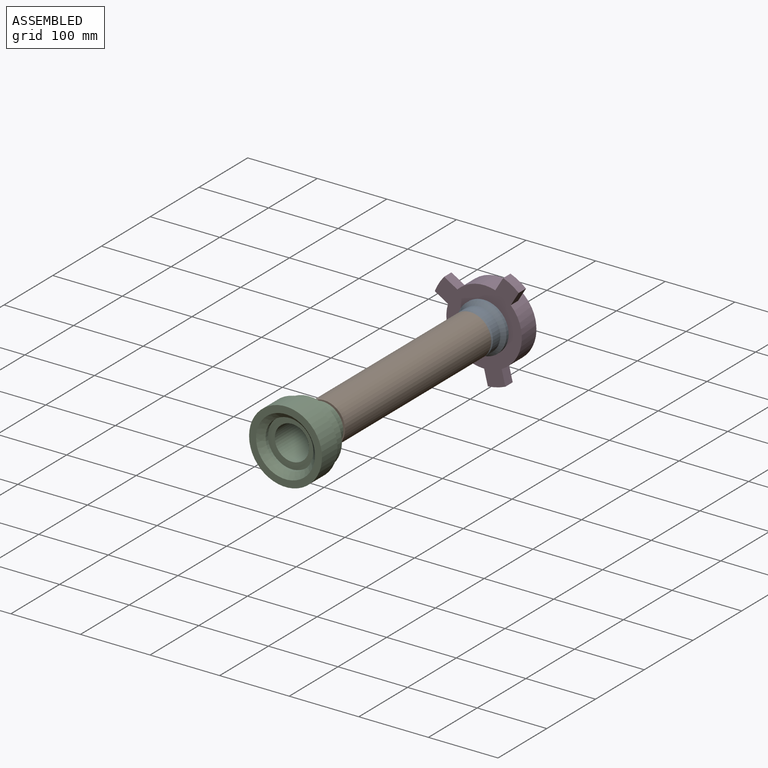
[diagram: assembled view]
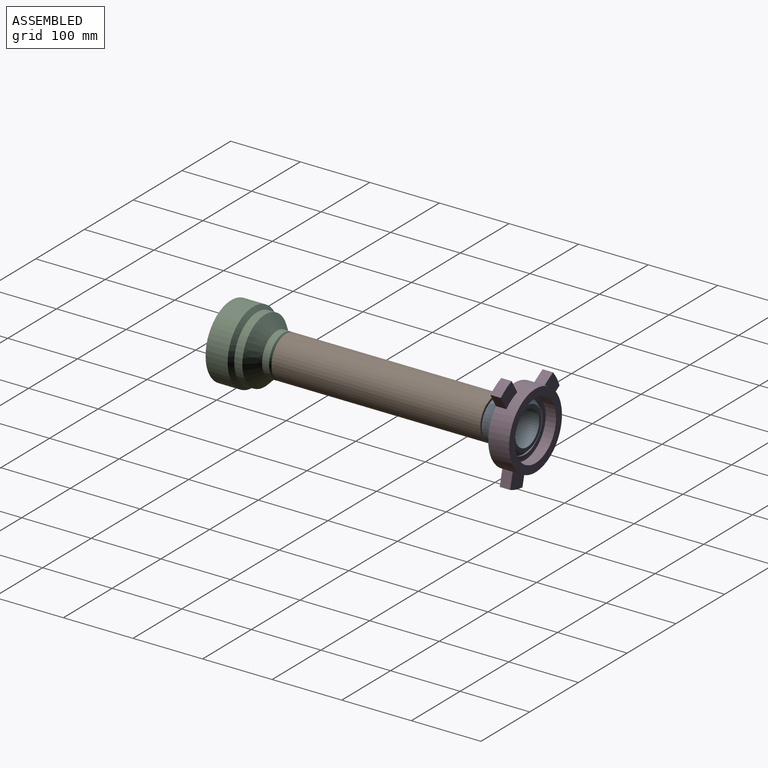
[diagram: assembled view, second angle]
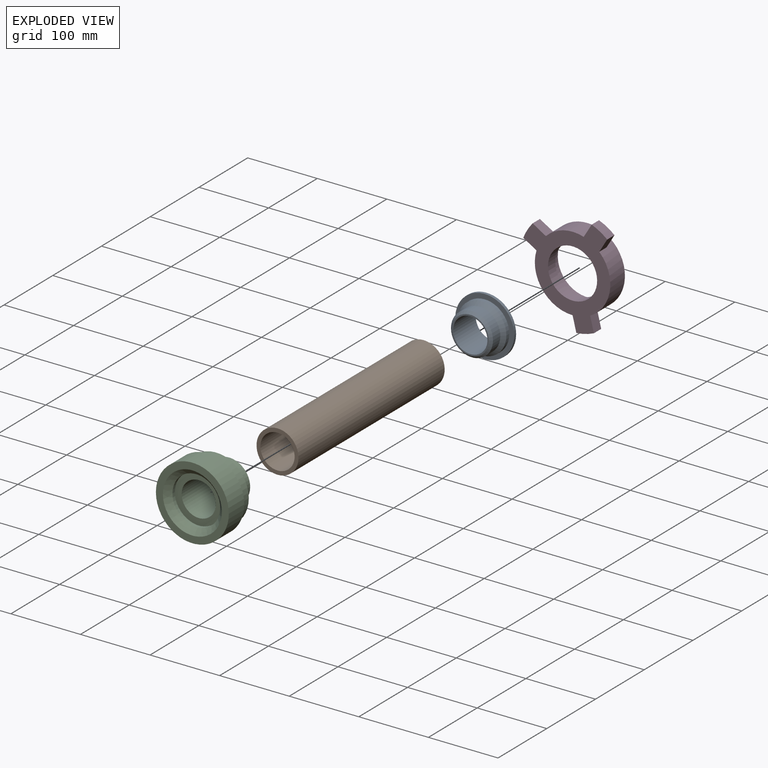
[diagram: exploded view]
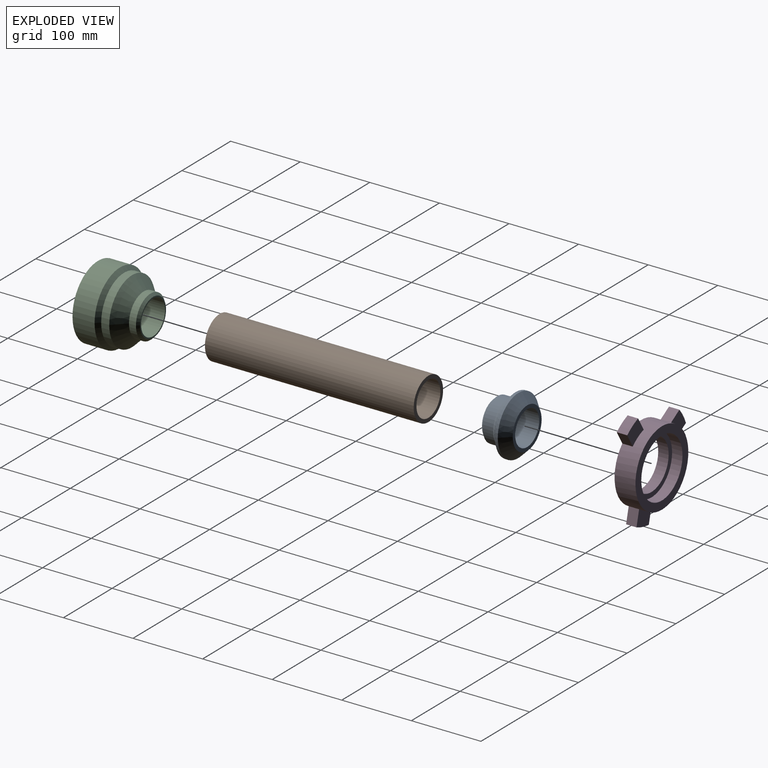
[diagram: exploded view, second angle]
ASSEMBLY  parts=4 mates=3
PART A: 10 faces, bbox 84.6x84.6x46.4 mm
  f0: cylinder r=24.61mm len=49.22mm, axis (0,0,1), area 7167.8mm2, adj f1,f9
  f1: plane 53.22x53.22mm, normal (0,0,1), area 321.8mm2, adj f0,f2
  f2: cone r=26.61mm half-angle=45deg, axis (0,0,-1), area 892.7mm2, adj f1,f3
  f3: cylinder r=30.15mm len=60.3mm, axis (0,0,1), area 2841.6mm2, adj f2,f4
  f4: cone r=30.15mm half-angle=45deg, axis (0,0,-1), area 1497.6mm2, adj f3,f5
  f5: cylinder r=35.3mm len=70.6mm, axis (0,0,1), area 1315.6mm2, adj f4,f6
  f6: plane 84.61x84.61mm, normal (0,0,1), area 1708.1mm2, adj f5,f7
  f7: cylinder r=42.31mm len=84.61mm, axis (0,0,1), area 1073.2mm2, adj f6,f8
  f8: cone r=42.31mm half-angle=45deg, axis (0,0,1), area 4056.6mm2, adj f7,f9
  f9: plane 59.22x59.22mm, normal (0,0,-1), area 851.7mm2, adj f0,f8
PART B: 4 faces, bbox 60.3x300x60.3 mm
  f0: cylinder r=24.61mm len=300mm, axis (0,-1,0), area 46388.8mm2, adj f2,f3
  f1: cylinder r=30.15mm len=300mm, axis (0,-1,0), area 56831.4mm2, adj f2,f3
  f2: plane 60.3x60.3mm, normal (0,1,0), area 953.1mm2, adj f0,f1
  f3: plane 60.3x60.3mm, normal (0,-1,0), area 953.1mm2, adj f0,f1
PART C: 12 faces, bbox 104.8x104.8x79.1 mm
  f0: cylinder r=24.61mm len=66.04mm, axis (0,0,1), area 10211.3mm2, adj f1,f11
  f1: plane 53.22x53.22mm, normal (0,0,1), area 321.8mm2, adj f0,f2
  f2: cone r=26.61mm half-angle=45deg, axis (0,0,-1), area 892.7mm2, adj f1,f3
  f3: cylinder r=30.15mm len=60.3mm, axis (0,0,1), area 1894.4mm2, adj f2,f4
  f4: cone r=30.15mm half-angle=45deg, axis (0,0,-1), area 5705.2mm2, adj f3,f5
  f5: cylinder r=46.83mm len=93.66mm, axis (0,0,1), area 3410.6mm2, adj f4,f6
  f6: cone r=46.83mm half-angle=45deg, axis (0,0,-1), area 2450.6mm2, adj f5,f7
  f7: cylinder r=52.39mm len=104.78mm, axis (0,0,1), area 10451.3mm2, adj f6,f8
  f8: plane 104.78x104.78mm, normal (0,0,-1), area 2977.6mm2, adj f7,f9
  f9: cone r=42.39mm half-angle=45deg, axis (0,0,-1), area 2754.5mm2, adj f8,f10
  f10: cylinder r=34.31mm len=68.61mm, axis (0,0,1), area 1077.8mm2, adj f9,f11
  f11: plane 68.61x68.61mm, normal (0,0,-1), area 1794.7mm2, adj f0,f10
PART D: 18 faces, bbox 124.2x30x138 mm
  f0: cylinder r=35.31mm len=70.61mm, axis (0,-1,0), area 3327.5mm2, adj f4,f16
  f1: plane 108.49x108.49mm, normal (0,1,0), area 3622.1mm2, adj f12,f17
  f2: cylinder r=75.95mm len=18.39mm, axis (0,1,0), area 392mm2, adj f4,f9,f11,f13
  f3: cylinder r=75.95mm len=26.01mm, axis (0,1,0), area 392mm2, adj f4,f7,f8,f15
  f4: plane 138.05x124.21mm, normal (0,-1,0), area 7033.6mm2, adj f0,f2,f3,f5,f6,f7,f8,f9
  f5: cylinder r=75.95mm len=18.39mm, axis (0,1,0), area 392mm2, adj f4,f6,f10,f14
  f6: plane 15.67x15.67mm, normal (-0.71,0,0.71), area 332.4mm2, adj f4,f5,f12,f14
  f7: plane 22.16x15mm, normal (-1,0,0), area 332.4mm2, adj f3,f4,f12,f15
  f8: plane 22.16x15mm, normal (1,0,0), area 332.4mm2, adj f3,f4,f12,f15
  f9: plane 15.67x15.67mm, normal (0.71,0,0.71), area 332.4mm2, adj f2,f4,f12,f13
  f10: plane 15.67x15.67mm, normal (0.71,0,-0.71), area 332.4mm2, adj f4,f5,f12,f14
  f11: plane 15.67x15.67mm, normal (-0.71,0,-0.71), area 332.4mm2, adj f2,f4,f12,f13
  f12: cylinder r=54.25mm len=108.49mm, axis (0,-1,0), area 9043.5mm2, adj f1,f4,f6,f7,f8,f9,f10,f11
  f13: plane 34.06x34.06mm, normal (0,1,0), area 568.2mm2, adj f2,f9,f11,f12
  f14: plane 34.06x34.06mm, normal (0,1,0), area 568.2mm2, adj f5,f6,f10,f12
  f15: plane 26.01x23.28mm, normal (0,1,0), area 568.2mm2, adj f3,f7,f8,f12
  f16: plane 84.61x84.61mm, normal (0,1,0), area 1706.8mm2, adj f0,f17
  f17: cylinder r=42.31mm len=84.61mm, axis (0,1,0), area 3987.2mm2, adj f1,f16
PLACE A rot(axis=(1,0,0),90deg) t=(0,323.18,0)mm
PLACE B at identity
PLACE C rot(axis=(-1,0,0),90deg) t=(0,-33.02,0)mm
PLACE D rot(axis=(0,1,0),166.1deg) t=(0,358.29,0)mm
MATE cylindrical C.f0 <-> B.f1  axis (0,1,0) through (0,0,0)mm
MATE cylindrical D.f17 <-> A.f0  axis (0,1,0) through (0,343.29,0)mm
MATE cylindrical A.f0 <-> B.f1  axis (0,-1,0) through (0,300,0)mm
